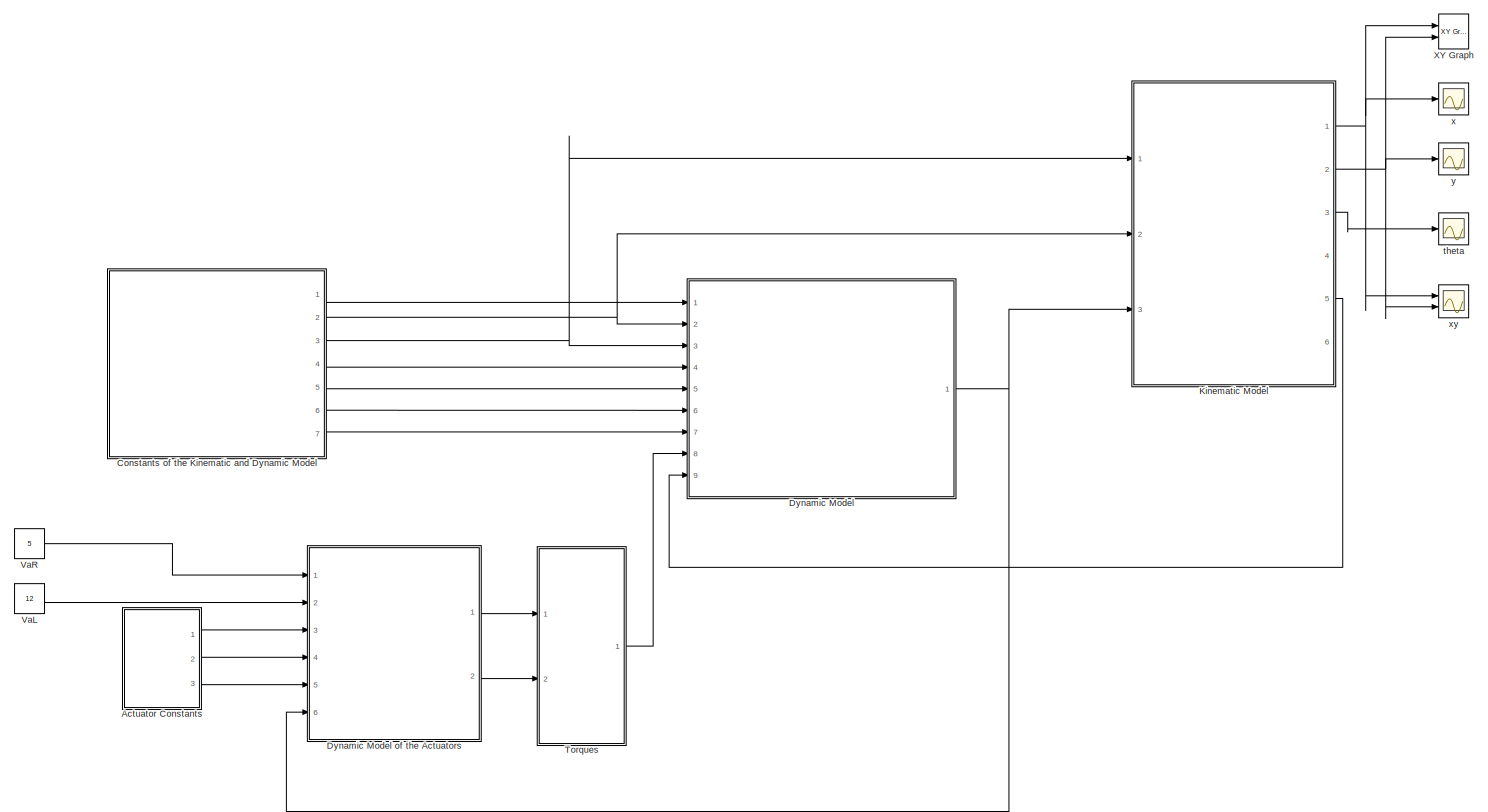
[diagram: root canvas - part 1/2, full width, middle band]
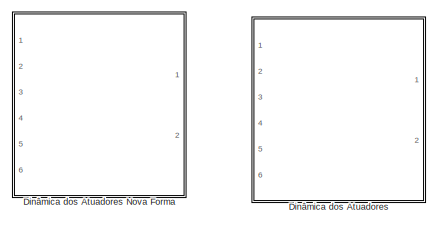
[diagram: root canvas - part 2/2, bottom left region]
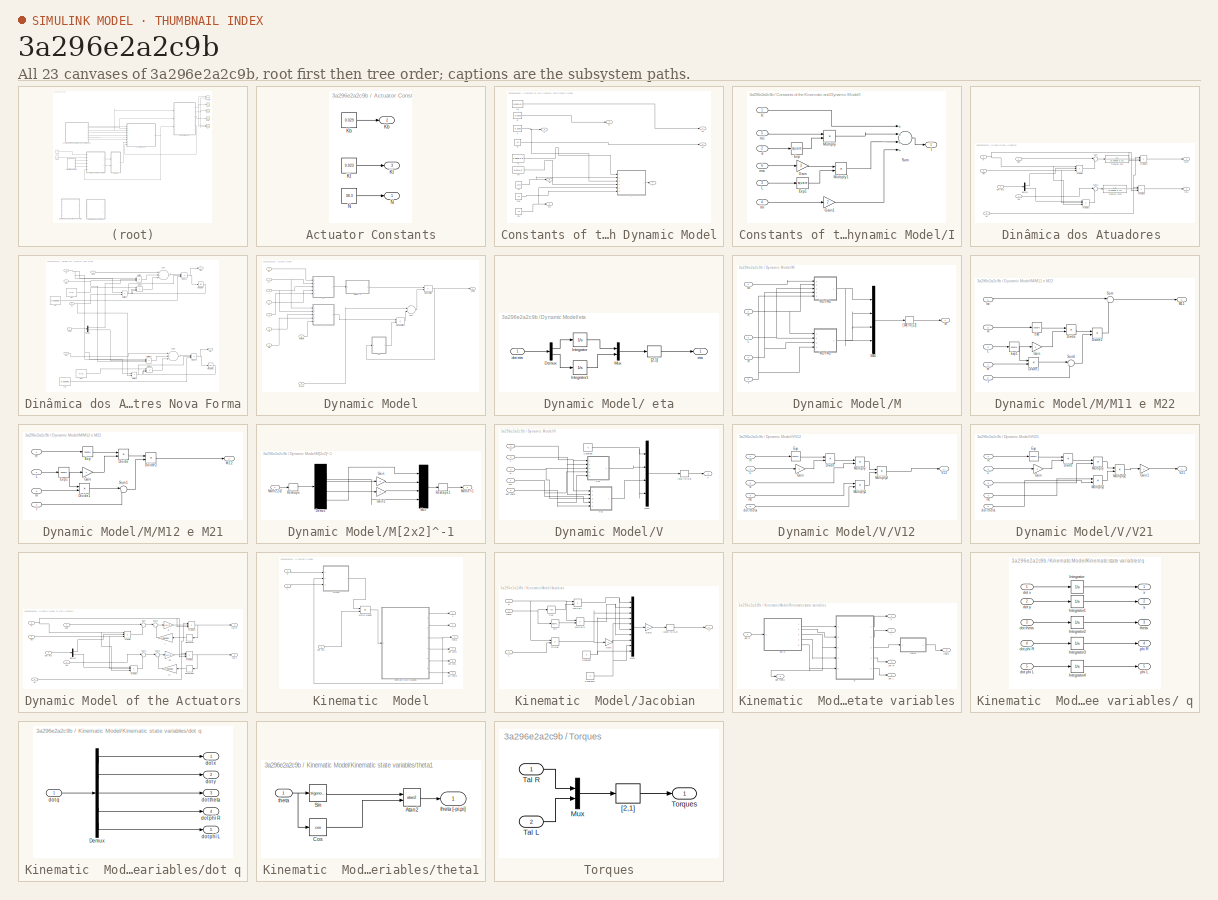
[diagram: thumbnail index - all 23 canvases of the model, root first then tree order]
MODEL slx_3a296e2a2c9b
KIND model
CONFIG AbsTol = auto
CONFIG EnableMultiTasking = off
CONFIG FixedStep = 0.01
CONFIG MaxStep = auto
CONFIG MinStep = auto
CONFIG RelTol = 1e-3
CONFIG SampleTimeConstraint = Unconstrained
CONFIG Solver = ode4
CONFIG SolverName = ode4
CONFIG StartTime = 0.0
CONFIG StopTime = 100
BLOCK [SubSystem] Actuator Constants
  Ports = [0, 3]
  RequestExecContextInheritance = off
BLOCK [Constant] Actuator Constants/Kb
  Value = 0.029
BLOCK [Outport] Actuator Constants/Kb 
  IconDisplay = Port number
  Port = 2
BLOCK [Constant] Actuator Constants/Kt
  Value = 0.023
BLOCK [Outport] Actuator Constants/Kt 
  IconDisplay = Port number
  Port = 3
BLOCK [Outport] Actuator Constants/N
  IconDisplay = Port number
BLOCK [Constant] Actuator Constants/N  
  Value = 38.3
BLOCK [SubSystem] Constants of the Kinematic and Dynamic Model
  Ports = [0, 7]
  RequestExecContextInheritance = off
BLOCK [SubSystem] Constants of the Kinematic and Dynamic Model/I
  Ports = [6, 1]
  RequestExecContextInheritance = off
BLOCK [Outport] Constants of the Kinematic and Dynamic Model/I 
  IconDisplay = Port number
  Port = 7
BLOCK [Math] Constants of the Kinematic and Dynamic Model/I/Exp
  Operator = square
  Ports = [1, 1]
BLOCK [Math] Constants of the Kinematic and Dynamic Model/I/Exp1
  Operator = square
  Ports = [1, 1]
BLOCK [Gain] Constants of the Kinematic and Dynamic Model/I/Gain
  Gain = 2
  OutDataTypeStr = Inherit: Inherit via internal rule
  ParamDataTypeStr = Inherit: Inherit via internal rule
  SaturateOnIntegerOverflow = off
BLOCK [Gain] Constants of the Kinematic and Dynamic Model/I/Gain1
  Gain = 2
  OutDataTypeStr = Inherit: Inherit via internal rule
  ParamDataTypeStr = Inherit: Inherit via internal rule
  SaturateOnIntegerOverflow = off
BLOCK [Outport] Constants of the Kinematic and Dynamic Model/I/I
  IconDisplay = Port number
BLOCK [Inport] Constants of the Kinematic and Dynamic Model/I/Ic
  IconDisplay = Port number
BLOCK [Inport] Constants of the Kinematic and Dynamic Model/I/Im
  IconDisplay = Port number
  Port = 4
BLOCK [Inport] Constants of the Kinematic and Dynamic Model/I/L
  IconDisplay = Port number
  Port = 3
BLOCK [Product] Constants of the Kinematic and Dynamic Model/I/Multiply
  InputSameDT = off
  OutDataTypeStr = Inherit: Inherit via internal rule
  Ports = [2, 1]
  RndMeth = Floor
  SaturateOnIntegerOverflow = off
BLOCK [Product] Constants of the Kinematic and Dynamic Model/I/Multiply1
  InputSameDT = off
  OutDataTypeStr = Inherit: Inherit via internal rule
  Ports = [2, 1]
  RndMeth = Floor
  SaturateOnIntegerOverflow = off
BLOCK [Sum] Constants of the Kinematic and Dynamic Model/I/Sum
  InputSameDT = off
  Inputs = ++++
  OutDataTypeStr = Inherit: Inherit via internal rule
  Ports = [4, 1]
  SaturateOnIntegerOverflow = off
BLOCK [Inport] Constants of the Kinematic and Dynamic Model/I/d
  IconDisplay = Port number
  Port = 2
BLOCK [Inport] Constants of the Kinematic and Dynamic Model/I/mc
  IconDisplay = Port number
  Port = 5
BLOCK [Inport] Constants of the Kinematic and Dynamic Model/I/mw
  IconDisplay = Port number
  Port = 6
BLOCK [Constant] Constants of the Kinematic and Dynamic Model/Ic
  Value = 0.1307*1.6
BLOCK [Constant] Constants of the Kinematic and Dynamic Model/Im
  Value = 0.04*1.5
BLOCK [Constant] Constants of the Kinematic and Dynamic Model/Iw
  Value = 0.02*1.5
BLOCK [Outport] Constants of the Kinematic and Dynamic Model/Iw 
  IconDisplay = Port number
BLOCK [Constant] Constants of the Kinematic and Dynamic Model/L
  Value = 0.1655
  VectorParams1D = off
BLOCK [Outport] Constants of the Kinematic and Dynamic Model/L 
  IconDisplay = Port number
  Port = 3
BLOCK [Constant] Constants of the Kinematic and Dynamic Model/R
  Value = 0.0975
BLOCK [Outport] Constants of the Kinematic and Dynamic Model/R 
  IconDisplay = Port number
  Port = 2
BLOCK [Constant] Constants of the Kinematic and Dynamic Model/d
  Value = 0.445
BLOCK [Outport] Constants of the Kinematic and Dynamic Model/d 
  IconDisplay = Port number
  Port = 5
BLOCK [Constant] Constants of the Kinematic and Dynamic Model/m
  Value = 4.6
BLOCK [Outport] Constants of the Kinematic and Dynamic Model/m 
  IconDisplay = Port number
  Port = 4
BLOCK [Constant] Constants of the Kinematic and Dynamic Model/mc
  Value = 1.6
BLOCK [Outport] Constants of the Kinematic and Dynamic Model/mc 
  IconDisplay = Port number
  Port = 6
BLOCK [Constant] Constants of the Kinematic and Dynamic Model/mw
  Value = 1.5
BLOCK [SubSystem] Dinâmica dos Atuadores 
  Commented = on
  Ports = [6, 2]
  RequestExecContextInheritance = off
BLOCK [Demux] Dinâmica dos Atuadores /Demux
  DisplayOption = bar
  Outputs = 2
  Ports = [1, 2]
BLOCK [Inport] Dinâmica dos Atuadores /Kb 
  IconDisplay = Port number
  Port = 5
BLOCK [Inport] Dinâmica dos Atuadores /Kt 
  IconDisplay = Port number
  Port = 6
BLOCK [Product] Dinâmica dos Atuadores /Multiply
  InputSameDT = off
  Inputs = 3
  OutDataTypeStr = Inherit: Inherit via internal rule
  Ports = [3, 1]
  RndMeth = Floor
  SaturateOnIntegerOverflow = off
BLOCK [Product] Dinâmica dos Atuadores /Multiply1
  InputSameDT = off
  Inputs = 3
  OutDataTypeStr = Inherit: Inherit via internal rule
  Ports = [3, 1]
  RndMeth = Floor
  SaturateOnIntegerOverflow = off
BLOCK [Product] Dinâmica dos Atuadores /Multiply2
  InputSameDT = off
  Inputs = 3
  OutDataTypeStr = Inherit: Inherit via internal rule
  Ports = [3, 1]
  RndMeth = Floor
  SaturateOnIntegerOverflow = off
BLOCK [Product] Dinâmica dos Atuadores /Multiply3
  InputSameDT = off
  Inputs = 3
  OutDataTypeStr = Inherit: Inherit via internal rule
  Ports = [3, 1]
  RndMeth = Floor
  SaturateOnIntegerOverflow = off
BLOCK [Inport] Dinâmica dos Atuadores /N 
  IconDisplay = Port number
  Port = 4
BLOCK [Sum] Dinâmica dos Atuadores /Sum
  IconShape = round
  InputSameDT = off
  Inputs = |+-
  OutDataTypeStr = Inherit: Inherit via internal rule
  Ports = [2, 1]
  SaturateOnIntegerOverflow = off
BLOCK [Sum] Dinâmica dos Atuadores /Sum1
  IconShape = round
  InputSameDT = off
  Inputs = |+-
  OutDataTypeStr = Inherit: Inherit via internal rule
  Ports = [2, 1]
  SaturateOnIntegerOverflow = off
BLOCK [TransferFcn] Dinâmica dos Atuadores /Transfer Fcn
  Denominator = [0.00066 0.71]
BLOCK [TransferFcn] Dinâmica dos Atuadores /Transfer Fcn2
  Denominator = [0.00066 0.71]
BLOCK [Inport] Dinâmica dos Atuadores /VaL
  IconDisplay = Port number
  Port = 2
BLOCK [Inport] Dinâmica dos Atuadores /VaR
  IconDisplay = Port number
BLOCK [Inport] Dinâmica dos Atuadores /dot eta
  IconDisplay = Port number
  Port = 3
BLOCK [Outport] Dinâmica dos Atuadores /tal L
  IconDisplay = Port number
  Port = 2
BLOCK [Outport] Dinâmica dos Atuadores /tal R
  IconDisplay = Port number
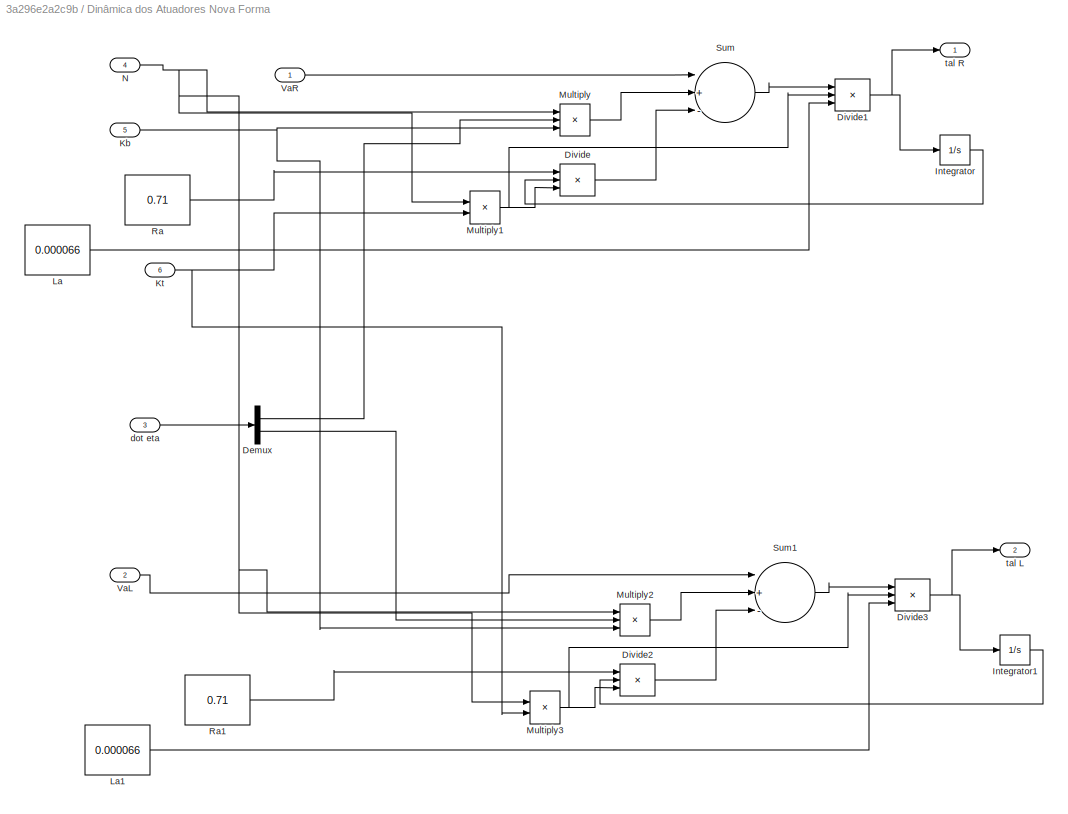
BLOCK [SubSystem] Dinâmica dos Atuadores Nova Forma
  Commented = on
  Ports = [6, 2]
  RequestExecContextInheritance = off
BLOCK [Demux] Dinâmica dos Atuadores Nova Forma/Demux
  DisplayOption = bar
  Outputs = 2
  Ports = [1, 2]
BLOCK [Product] Dinâmica dos Atuadores Nova Forma/Divide
  InputSameDT = off
  Inputs = **/
  OutDataTypeStr = Inherit: Inherit via internal rule
  Ports = [3, 1]
  RndMeth = Floor
  SaturateOnIntegerOverflow = off
BLOCK [Product] Dinâmica dos Atuadores Nova Forma/Divide1
  InputSameDT = off
  Inputs = **/
  OutDataTypeStr = Inherit: Inherit via internal rule
  Ports = [3, 1]
  RndMeth = Floor
  SaturateOnIntegerOverflow = off
BLOCK [Product] Dinâmica dos Atuadores Nova Forma/Divide2
  InputSameDT = off
  Inputs = **/
  OutDataTypeStr = Inherit: Inherit via internal rule
  Ports = [3, 1]
  RndMeth = Floor
  SaturateOnIntegerOverflow = off
BLOCK [Product] Dinâmica dos Atuadores Nova Forma/Divide3
  InputSameDT = off
  Inputs = **/
  OutDataTypeStr = Inherit: Inherit via internal rule
  Ports = [3, 1]
  RndMeth = Floor
  SaturateOnIntegerOverflow = off
BLOCK [Integrator] Dinâmica dos Atuadores Nova Forma/Integrator
  Ports = [1, 1]
BLOCK [Integrator] Dinâmica dos Atuadores Nova Forma/Integrator1
  Ports = [1, 1]
BLOCK [Inport] Dinâmica dos Atuadores Nova Forma/Kb 
  IconDisplay = Port number
  Port = 5
BLOCK [Inport] Dinâmica dos Atuadores Nova Forma/Kt 
  IconDisplay = Port number
  Port = 6
BLOCK [Constant] Dinâmica dos Atuadores Nova Forma/La
  Value = 0.000066
BLOCK [Constant] Dinâmica dos Atuadores Nova Forma/La1
  Value = 0.000066
BLOCK [Product] Dinâmica dos Atuadores Nova Forma/Multiply
  InputSameDT = off
  Inputs = 3
  OutDataTypeStr = Inherit: Inherit via internal rule
  Ports = [3, 1]
  RndMeth = Floor
  SaturateOnIntegerOverflow = off
BLOCK [Product] Dinâmica dos Atuadores Nova Forma/Multiply1
  InputSameDT = off
  OutDataTypeStr = Inherit: Inherit via internal rule
  Ports = [2, 1]
  RndMeth = Floor
  SaturateOnIntegerOverflow = off
BLOCK [Product] Dinâmica dos Atuadores Nova Forma/Multiply2
  InputSameDT = off
  Inputs = 3
  OutDataTypeStr = Inherit: Inherit via internal rule
  Ports = [3, 1]
  RndMeth = Floor
  SaturateOnIntegerOverflow = off
BLOCK [Product] Dinâmica dos Atuadores Nova Forma/Multiply3
  InputSameDT = off
  OutDataTypeStr = Inherit: Inherit via internal rule
  Ports = [2, 1]
  RndMeth = Floor
  SaturateOnIntegerOverflow = off
BLOCK [Inport] Dinâmica dos Atuadores Nova Forma/N 
  IconDisplay = Port number
  Port = 4
BLOCK [Constant] Dinâmica dos Atuadores Nova Forma/Ra
  Value = 0.71
BLOCK [Constant] Dinâmica dos Atuadores Nova Forma/Ra1
  Value = 0.71
BLOCK [Sum] Dinâmica dos Atuadores Nova Forma/Sum
  InputSameDT = off
  Inputs = |+--
  OutDataTypeStr = Inherit: Inherit via internal rule
  Ports = [3, 1]
  SaturateOnIntegerOverflow = off
BLOCK [Sum] Dinâmica dos Atuadores Nova Forma/Sum1
  InputSameDT = off
  Inputs = |+--
  OutDataTypeStr = Inherit: Inherit via internal rule
  Ports = [3, 1]
  SaturateOnIntegerOverflow = off
BLOCK [Inport] Dinâmica dos Atuadores Nova Forma/VaL
  IconDisplay = Port number
  Port = 2
BLOCK [Inport] Dinâmica dos Atuadores Nova Forma/VaR
  IconDisplay = Port number
BLOCK [Inport] Dinâmica dos Atuadores Nova Forma/dot eta
  IconDisplay = Port number
  Port = 3
BLOCK [Outport] Dinâmica dos Atuadores Nova Forma/tal L
  IconDisplay = Port number
  Port = 2
BLOCK [Outport] Dinâmica dos Atuadores Nova Forma/tal R
  IconDisplay = Port number
BLOCK [SubSystem] Dynamic Model
  Ports = [9, 1]
  RequestExecContextInheritance = off
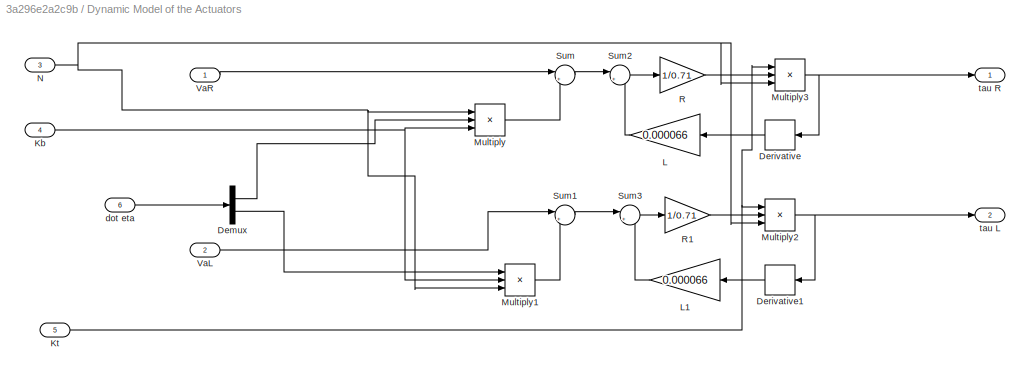
BLOCK [SubSystem] Dynamic Model of the Actuators
  Ports = [6, 2]
  RequestExecContextInheritance = off
BLOCK [Demux] Dynamic Model of the Actuators/Demux
  DisplayOption = bar
  Outputs = 2
  Ports = [1, 2]
BLOCK [Derivative] Dynamic Model of the Actuators/Derivative
BLOCK [Derivative] Dynamic Model of the Actuators/Derivative1
BLOCK [Inport] Dynamic Model of the Actuators/Kb 
  IconDisplay = Port number
  Port = 4
BLOCK [Inport] Dynamic Model of the Actuators/Kt 
  IconDisplay = Port number
  Port = 5
BLOCK [Gain] Dynamic Model of the Actuators/L
  Gain = 0.000066
  OutDataTypeStr = Inherit: Inherit via internal rule
  ParamDataTypeStr = Inherit: Inherit via internal rule
  SaturateOnIntegerOverflow = off
BLOCK [Gain] Dynamic Model of the Actuators/L1
  Gain = 0.000066
  OutDataTypeStr = Inherit: Inherit via internal rule
  ParamDataTypeStr = Inherit: Inherit via internal rule
  SaturateOnIntegerOverflow = off
BLOCK [Product] Dynamic Model of the Actuators/Multiply
  InputSameDT = off
  Inputs = 3
  OutDataTypeStr = Inherit: Inherit via internal rule
  Ports = [3, 1]
  RndMeth = Floor
  SaturateOnIntegerOverflow = off
BLOCK [Product] Dynamic Model of the Actuators/Multiply1
  InputSameDT = off
  Inputs = 3
  OutDataTypeStr = Inherit: Inherit via internal rule
  Ports = [3, 1]
  RndMeth = Floor
  SaturateOnIntegerOverflow = off
BLOCK [Product] Dynamic Model of the Actuators/Multiply2
  InputSameDT = off
  Inputs = 3
  OutDataTypeStr = Inherit: Inherit via internal rule
  Ports = [3, 1]
  RndMeth = Floor
  SaturateOnIntegerOverflow = off
BLOCK [Product] Dynamic Model of the Actuators/Multiply3
  InputSameDT = off
  Inputs = 3
  OutDataTypeStr = Inherit: Inherit via internal rule
  Ports = [3, 1]
  RndMeth = Floor
  SaturateOnIntegerOverflow = off
BLOCK [Inport] Dynamic Model of the Actuators/N 
  IconDisplay = Port number
  Port = 3
BLOCK [Gain] Dynamic Model of the Actuators/R
  Gain = 1/0.71
  OutDataTypeStr = Inherit: Inherit via internal rule
  ParamDataTypeStr = Inherit: Inherit via internal rule
  SaturateOnIntegerOverflow = off
BLOCK [Gain] Dynamic Model of the Actuators/R1
  Gain = 1/0.71
  OutDataTypeStr = Inherit: Inherit via internal rule
  ParamDataTypeStr = Inherit: Inherit via internal rule
  SaturateOnIntegerOverflow = off
BLOCK [Sum] Dynamic Model of the Actuators/Sum
  IconShape = round
  InputSameDT = off
  Inputs = |+-
  OutDataTypeStr = Inherit: Inherit via internal rule
  Ports = [2, 1]
  SaturateOnIntegerOverflow = off
BLOCK [Sum] Dynamic Model of the Actuators/Sum1
  IconShape = round
  InputSameDT = off
  Inputs = |+-
  OutDataTypeStr = Inherit: Inherit via internal rule
  Ports = [2, 1]
  SaturateOnIntegerOverflow = off
BLOCK [Sum] Dynamic Model of the Actuators/Sum2
  IconShape = round
  InputSameDT = off
  Inputs = |+-
  OutDataTypeStr = Inherit: Inherit via internal rule
  Ports = [2, 1]
  SaturateOnIntegerOverflow = off
BLOCK [Sum] Dynamic Model of the Actuators/Sum3
  IconShape = round
  InputSameDT = off
  Inputs = |+-
  OutDataTypeStr = Inherit: Inherit via internal rule
  Ports = [2, 1]
  SaturateOnIntegerOverflow = off
BLOCK [Inport] Dynamic Model of the Actuators/VaL
  IconDisplay = Port number
  Port = 2
BLOCK [Inport] Dynamic Model of the Actuators/VaR
  IconDisplay = Port number
BLOCK [Inport] Dynamic Model of the Actuators/dot eta
  IconDisplay = Port number
  Port = 6
BLOCK [Outport] Dynamic Model of the Actuators/tau L
  IconDisplay = Port number
  Port = 2
BLOCK [Outport] Dynamic Model of the Actuators/tau R
  IconDisplay = Port number
BLOCK [SubSystem] Dynamic Model/ eta
  Ports = [1, 1]
  RequestExecContextInheritance = off
BLOCK [Demux] Dynamic Model/ eta/Demux
  DisplayOption = bar
  Outputs = 2
  Ports = [1, 2]
BLOCK [Integrator] Dynamic Model/ eta/Integrator
  Ports = [1, 1]
BLOCK [Integrator] Dynamic Model/ eta/Integrator1
  Ports = [1, 1]
BLOCK [Mux] Dynamic Model/ eta/Mux
  DisplayOption = bar
  Inputs = 2
  Ports = [2, 1]
BLOCK [Reshape] Dynamic Model/ eta/[2,1]
  OutputDimensionality = Customize
  OutputDimensions = [2,1]
  Ports = [1, 1]
BLOCK [Inport] Dynamic Model/ eta/dot eta
  IconDisplay = Port number
BLOCK [Outport] Dynamic Model/ eta/eta 
  IconDisplay = Port number
BLOCK [Inport] Dynamic Model/I
  IconDisplay = Port number
  Port = 7
BLOCK [Inport] Dynamic Model/Iw
  IconDisplay = Port number
BLOCK [Inport] Dynamic Model/L
  IconDisplay = Port number
  Port = 3
BLOCK [SubSystem] Dynamic Model/M
  Ports = [5, 1]
  RequestExecContextInheritance = off
BLOCK [Inport] Dynamic Model/M/I
  IconDisplay = Port number
  Port = 5
BLOCK [Inport] Dynamic Model/M/Iw
  IconDisplay = Port number
BLOCK [Inport] Dynamic Model/M/L
  IconDisplay = Port number
  Port = 3
BLOCK [Outport] Dynamic Model/M/M
  IconDisplay = Port number
BLOCK [SubSystem] Dynamic Model/M/M11 e M22
  Ports = [5, 1]
  RequestExecContextInheritance = off
BLOCK [Product] Dynamic Model/M/M11 e M22/Divide
  InputSameDT = off
  Inputs = */
  OutDataTypeStr = Inherit: Inherit via internal rule
  Ports = [2, 1]
  RndMeth = Floor
  SaturateOnIntegerOverflow = off
BLOCK [Product] Dynamic Model/M/M11 e M22/Divide1
  InputSameDT = off
  Inputs = **
  OutDataTypeStr = Inherit: Inherit via internal rule
  Ports = [2, 1]
  RndMeth = Floor
  SaturateOnIntegerOverflow = off
BLOCK [Product] Dynamic Model/M/M11 e M22/Divide2
  InputSameDT = off
  Inputs = **
  OutDataTypeStr = Inherit: Inherit via internal rule
  Ports = [2, 1]
  RndMeth = Floor
  SaturateOnIntegerOverflow = off
BLOCK [Math] Dynamic Model/M/M11 e M22/Exp
  Operator = square
  Ports = [1, 1]
BLOCK [Math] Dynamic Model/M/M11 e M22/Exp1
  Operator = square
  Ports = [1, 1]
BLOCK [Gain] Dynamic Model/M/M11 e M22/Gain
  Gain = 4
  OutDataTypeStr = Inherit: Inherit via internal rule
  ParamDataTypeStr = Inherit: Inherit via internal rule
  SaturateOnIntegerOverflow = off
BLOCK [Inport] Dynamic Model/M/M11 e M22/I
  IconDisplay = Port number
  Port = 5
BLOCK [Inport] Dynamic Model/M/M11 e M22/Iw
  IconDisplay = Port number
BLOCK [Inport] Dynamic Model/M/M11 e M22/L
  IconDisplay = Port number
  Port = 3
BLOCK [Outport] Dynamic Model/M/M11 e M22/M11
  IconDisplay = Port number
BLOCK [Inport] Dynamic Model/M/M11 e M22/R
  IconDisplay = Port number
  Port = 2
BLOCK [Sum] Dynamic Model/M/M11 e M22/Sum
  IconShape = round
  InputSameDT = off
  Inputs = |++
  OutDataTypeStr = Inherit: Inherit via internal rule
  Ports = [2, 1]
  SaturateOnIntegerOverflow = off
BLOCK [Sum] Dynamic Model/M/M11 e M22/Sum1
  IconShape = round
  InputSameDT = off
  Inputs = |++
  OutDataTypeStr = Inherit: Inherit via internal rule
  Ports = [2, 1]
  SaturateOnIntegerOverflow = off
BLOCK [Inport] Dynamic Model/M/M11 e M22/m 
  IconDisplay = Port number
  Port = 4
BLOCK [SubSystem] Dynamic Model/M/M12 e M21
  Ports = [4, 1]
  RequestExecContextInheritance = off
BLOCK [Product] Dynamic Model/M/M12 e M21/Divide
  InputSameDT = off
  Inputs = */
  OutDataTypeStr = Inherit: Inherit via internal rule
  Ports = [2, 1]
  RndMeth = Floor
  SaturateOnIntegerOverflow = off
BLOCK [Product] Dynamic Model/M/M12 e M21/Divide1
  InputSameDT = off
  Inputs = **
  OutDataTypeStr = Inherit: Inherit via internal rule
  Ports = [2, 1]
  RndMeth = Floor
  SaturateOnIntegerOverflow = off
BLOCK [Product] Dynamic Model/M/M12 e M21/Divide2
  InputSameDT = off
  Inputs = **
  OutDataTypeStr = Inherit: Inherit via internal rule
  Ports = [2, 1]
  RndMeth = Floor
  SaturateOnIntegerOverflow = off
BLOCK [Math] Dynamic Model/M/M12 e M21/Exp
  Operator = square
  Ports = [1, 1]
BLOCK [Math] Dynamic Model/M/M12 e M21/Exp1
  Operator = square
  Ports = [1, 1]
BLOCK [Gain] Dynamic Model/M/M12 e M21/Gain
  Gain = 4
  OutDataTypeStr = Inherit: Inherit via internal rule
  ParamDataTypeStr = Inherit: Inherit via internal rule
  SaturateOnIntegerOverflow = off
BLOCK [Inport] Dynamic Model/M/M12 e M21/I
  IconDisplay = Port number
  Port = 4
BLOCK [Inport] Dynamic Model/M/M12 e M21/L
  IconDisplay = Port number
  Port = 2
BLOCK [Outport] Dynamic Model/M/M12 e M21/M12
  IconDisplay = Port number
BLOCK [Inport] Dynamic Model/M/M12 e M21/R
  IconDisplay = Port number
BLOCK [Sum] Dynamic Model/M/M12 e M21/Sum1
  IconShape = round
  InputSameDT = off
  Inputs = |+-
  OutDataTypeStr = Inherit: Inherit via internal rule
  Ports = [2, 1]
  SaturateOnIntegerOverflow = off
BLOCK [Inport] Dynamic Model/M/M12 e M21/m 
  IconDisplay = Port number
  Port = 3
BLOCK [Mux] Dynamic Model/M/Mux1
  DisplayOption = bar
  Ports = [4, 1]
BLOCK [Inport] Dynamic Model/M/R
  IconDisplay = Port number
  Port = 2
BLOCK [Reshape] Dynamic Model/M/[1x4] to [2,2]
  OutputDimensionality = Customize
  OutputDimensions = [2,2]
  Ports = [1, 1]
BLOCK [Inport] Dynamic Model/M/m
  IconDisplay = Port number
  Port = 4
BLOCK [SubSystem] Dynamic Model/M[2x2]^-1
  Ports = [1, 1]
  RequestExecContextInheritance = off
BLOCK [Demux] Dynamic Model/M[2x2]^-1/Demux
  DisplayOption = bar
  Ports = [1, 4]
BLOCK [Gain] Dynamic Model/M[2x2]^-1/Gain
  Gain = -1
  OutDataTypeStr = Inherit: Inherit via internal rule
  ParamDataTypeStr = Inherit: Inherit via internal rule
  SaturateOnIntegerOverflow = off
BLOCK [Gain] Dynamic Model/M[2x2]^-1/Gain1
  Gain = -1
  OutDataTypeStr = Inherit: Inherit via internal rule
  ParamDataTypeStr = Inherit: Inherit via internal rule
  SaturateOnIntegerOverflow = off
BLOCK [Outport] Dynamic Model/M[2x2]^-1/Matrix ^-1
  IconDisplay = Port number
BLOCK [Inport] Dynamic Model/M[2x2]^-1/Matriz 2x2 
  IconDisplay = Port number
BLOCK [Mux] Dynamic Model/M[2x2]^-1/Mux
  DisplayOption = bar
  Ports = [4, 1]
BLOCK [Reshape] Dynamic Model/M[2x2]^-1/Reshape
  OutputDimensionality = Customize
  OutputDimensions = [4,1]
  Ports = [1, 1]
BLOCK [Reshape] Dynamic Model/M[2x2]^-1/Reshape1
  OutputDimensionality = Customize
  OutputDimensions = [2,2]
  Ports = [1, 1]
BLOCK [Product] Dynamic Model/Matrix Multiply
  InputSameDT = off
  Multiplication = Matrix(*)
  OutDataTypeStr = Inherit: Inherit via internal rule
  Ports = [2, 1]
  RndMeth = Floor
  SaturateOnIntegerOverflow = off
BLOCK [Product] Dynamic Model/Matrix Multiply1
  InputSameDT = off
  Multiplication = Matrix(*)
  OutDataTypeStr = Inherit: Inherit via internal rule
  Ports = [2, 1]
  RndMeth = Floor
  SaturateOnIntegerOverflow = off
BLOCK [Inport] Dynamic Model/R
  IconDisplay = Port number
  Port = 2
BLOCK [Sum] Dynamic Model/Sum
  InputSameDT = off
  Inputs = +-
  OutDataTypeStr = Inherit: Inherit via internal rule
  Ports = [2, 1]
  SaturateOnIntegerOverflow = off
BLOCK [SubSystem] Dynamic Model/V
  Ports = [5, 1]
  RequestExecContextInheritance = off
BLOCK [Constant] Dynamic Model/V/Constant
  Value = 0
BLOCK [Inport] Dynamic Model/V/L
  IconDisplay = Port number
  Port = 2
BLOCK [Mux] Dynamic Model/V/Mux1
  DisplayOption = bar
  Ports = [4, 1]
BLOCK [Inport] Dynamic Model/V/R
  IconDisplay = Port number
BLOCK [Outport] Dynamic Model/V/V
  IconDisplay = Port number
BLOCK [SubSystem] Dynamic Model/V/V12
  Ports = [5, 1]
  RequestExecContextInheritance = off
BLOCK [Product] Dynamic Model/V/V12/Divide
  InputSameDT = off
  Inputs = */
  OutDataTypeStr = Inherit: Inherit via internal rule
  Ports = [2, 1]
  RndMeth = Floor
  SaturateOnIntegerOverflow = off
BLOCK [Math] Dynamic Model/V/V12/Exp
  Operator = square
  Ports = [1, 1]
BLOCK [Gain] Dynamic Model/V/V12/Gain
  Gain = 2
  OutDataTypeStr = Inherit: Inherit via internal rule
  ParamDataTypeStr = Inherit: Inherit via internal rule
  SaturateOnIntegerOverflow = off
BLOCK [Inport] Dynamic Model/V/V12/L
  IconDisplay = Port number
  Port = 2
BLOCK [Product] Dynamic Model/V/V12/Multiply
  InputSameDT = off
  OutDataTypeStr = Inherit: Inherit via internal rule
  Ports = [2, 1]
  RndMeth = Floor
  SaturateOnIntegerOverflow = off
BLOCK [Product] Dynamic Model/V/V12/Multiply1
  InputSameDT = off
  OutDataTypeStr = Inherit: Inherit via internal rule
  Ports = [2, 1]
  RndMeth = Floor
  SaturateOnIntegerOverflow = off
BLOCK [Product] Dynamic Model/V/V12/Multiply2
  InputSameDT = off
  OutDataTypeStr = Inherit: Inherit via internal rule
  Ports = [2, 1]
  RndMeth = Floor
  SaturateOnIntegerOverflow = off
BLOCK [Inport] Dynamic Model/V/V12/R
  IconDisplay = Port number
BLOCK [Outport] Dynamic Model/V/V12/V12 
  IconDisplay = Port number
BLOCK [Inport] Dynamic Model/V/V12/d
  IconDisplay = Port number
  Port = 3
BLOCK [Inport] Dynamic Model/V/V12/dot theta
  IconDisplay = Port number
  Port = 5
BLOCK [Inport] Dynamic Model/V/V12/mc
  IconDisplay = Port number
  Port = 4
BLOCK [SubSystem] Dynamic Model/V/V21
  Ports = [5, 1]
  RequestExecContextInheritance = off
BLOCK [Product] Dynamic Model/V/V21/Divide
  InputSameDT = off
  Inputs = */
  OutDataTypeStr = Inherit: Inherit via internal rule
  Ports = [2, 1]
  RndMeth = Floor
  SaturateOnIntegerOverflow = off
BLOCK [Math] Dynamic Model/V/V21/Exp
  Operator = square
  Ports = [1, 1]
BLOCK [Gain] Dynamic Model/V/V21/Gain
  Gain = 2
  OutDataTypeStr = Inherit: Inherit via internal rule
  ParamDataTypeStr = Inherit: Inherit via internal rule
  SaturateOnIntegerOverflow = off
BLOCK [Gain] Dynamic Model/V/V21/Gain1
  Gain = -1
  OutDataTypeStr = Inherit: Inherit via internal rule
  ParamDataTypeStr = Inherit: Inherit via internal rule
  SaturateOnIntegerOverflow = off
BLOCK [Inport] Dynamic Model/V/V21/L
  IconDisplay = Port number
  Port = 2
BLOCK [Product] Dynamic Model/V/V21/Multiply
  InputSameDT = off
  OutDataTypeStr = Inherit: Inherit via internal rule
  Ports = [2, 1]
  RndMeth = Floor
  SaturateOnIntegerOverflow = off
BLOCK [Product] Dynamic Model/V/V21/Multiply1
  InputSameDT = off
  OutDataTypeStr = Inherit: Inherit via internal rule
  Ports = [2, 1]
  RndMeth = Floor
  SaturateOnIntegerOverflow = off
BLOCK [Product] Dynamic Model/V/V21/Multiply2
  InputSameDT = off
  OutDataTypeStr = Inherit: Inherit via internal rule
  Ports = [2, 1]
  RndMeth = Floor
  SaturateOnIntegerOverflow = off
BLOCK [Inport] Dynamic Model/V/V21/R
  IconDisplay = Port number
BLOCK [Outport] Dynamic Model/V/V21/V21 
  IconDisplay = Port number
BLOCK [Inport] Dynamic Model/V/V21/d
  IconDisplay = Port number
  Port = 3
BLOCK [Inport] Dynamic Model/V/V21/dot theta
  IconDisplay = Port number
  Port = 5
BLOCK [Inport] Dynamic Model/V/V21/mc
  IconDisplay = Port number
  Port = 4
BLOCK [Reshape] Dynamic Model/V/[4x1] to [2,2]
  OutputDimensionality = Customize
  OutputDimensions = [2,2]
  Ports = [1, 1]
BLOCK [Inport] Dynamic Model/V/d
  IconDisplay = Port number
  Port = 3
BLOCK [Inport] Dynamic Model/V/dot theta
  IconDisplay = Port number
  Port = 5
BLOCK [Inport] Dynamic Model/V/mc
  IconDisplay = Port number
  Port = 4
BLOCK [Inport] Dynamic Model/d
  IconDisplay = Port number
  Port = 5
BLOCK [Outport] Dynamic Model/dot eta
  IconDisplay = Port number
BLOCK [Inport] Dynamic Model/dot theta
  IconDisplay = Port number
  Port = 9
BLOCK [Inport] Dynamic Model/m
  IconDisplay = Port number
  Port = 4
BLOCK [Inport] Dynamic Model/mc
  IconDisplay = Port number
  Port = 6
BLOCK [Inport] Dynamic Model/torque
  IconDisplay = Port number
  Port = 8
BLOCK [SubSystem] Kinematic  Model
  Ports = [3, 6]
  RequestExecContextInheritance = off
BLOCK [SubSystem] Kinematic  Model/Jacobian 
  Ports = [3, 1]
  RequestExecContextInheritance = off
BLOCK [Constant] Kinematic  Model/Jacobian /Constant
  Value = 2
BLOCK [Constant] Kinematic  Model/Jacobian /Constant1
  Value = 0
BLOCK [Trigonometry] Kinematic  Model/Jacobian /Cos
  Operator = cos
  Ports = [1, 1]
BLOCK [Product] Kinematic  Model/Jacobian /Divide
  InputSameDT = off
  Inputs = */
  OutDataTypeStr = Inherit: Inherit via internal rule
  Ports = [2, 1]
  RndMeth = Floor
  SaturateOnIntegerOverflow = off
BLOCK [Gain] Kinematic  Model/Jacobian /Gain
  Gain = -1
  OutDataTypeStr = Inherit: Inherit via internal rule
  ParamDataTypeStr = Inherit: Inherit via internal rule
  SaturateOnIntegerOverflow = off
BLOCK [Gain] Kinematic  Model/Jacobian /Gain1
  Gain = .5
  OutDataTypeStr = Inherit: Inherit via internal rule
  ParamDataTypeStr = Inherit: Inherit via internal rule
  SaturateOnIntegerOverflow = off
BLOCK [Outport] Kinematic  Model/Jacobian /J
  IconDisplay = Port number
BLOCK [Inport] Kinematic  Model/Jacobian /L
  IconDisplay = Port number
  Port = 3
BLOCK [Product] Kinematic  Model/Jacobian /Multiply
  InputSameDT = off
  OutDataTypeStr = Inherit: Inherit via internal rule
  Ports = [2, 1]
  RndMeth = Floor
  SaturateOnIntegerOverflow = off
BLOCK [Product] Kinematic  Model/Jacobian /Multiply1
  InputSameDT = off
  OutDataTypeStr = Inherit: Inherit via internal rule
  Ports = [2, 1]
  RndMeth = Floor
  SaturateOnIntegerOverflow = off
BLOCK [Mux] Kinematic  Model/Jacobian /Mux1
  DisplayOption = bar
  Inputs = 10
  Ports = [10, 1]
BLOCK [Inport] Kinematic  Model/Jacobian /R
  IconDisplay = Port number
BLOCK [Reshape] Kinematic  Model/Jacobian /[1x10] to [5,2]
  OutputDimensionality = Customize
  OutputDimensions = [5,2]
  Ports = [1, 1]
BLOCK [Trigonometry] Kinematic  Model/Jacobian /sin
  Ports = [1, 1]
BLOCK [Inport] Kinematic  Model/Jacobian /theta
  IconDisplay = Port number
  Port = 2
BLOCK [SubSystem] Kinematic  Model/Kinematic state variables
  Ports = [1, 6]
  RequestExecContextInheritance = off
BLOCK [SubSystem] Kinematic  Model/Kinematic state variables/ q
  Ports = [5, 5]
  RequestExecContextInheritance = off
BLOCK [Outport] Kinematic  Model/Kinematic state variables/ q/ phi L
  IconDisplay = Port number
  Port = 5
BLOCK [Outport] Kinematic  Model/Kinematic state variables/ q/ phi R
  IconDisplay = Port number
  Port = 4
BLOCK [Outport] Kinematic  Model/Kinematic state variables/ q/ theta
  IconDisplay = Port number
  Port = 3
BLOCK [Outport] Kinematic  Model/Kinematic state variables/ q/ x
  IconDisplay = Port number
BLOCK [Outport] Kinematic  Model/Kinematic state variables/ q/ y
  IconDisplay = Port number
  Port = 2
BLOCK [Integrator] Kinematic  Model/Kinematic state variables/ q/Integrator
  Ports = [1, 1]
BLOCK [Integrator] Kinematic  Model/Kinematic state variables/ q/Integrator1
  Ports = [1, 1]
BLOCK [Integrator] Kinematic  Model/Kinematic state variables/ q/Integrator2
  Ports = [1, 1]
BLOCK [Integrator] Kinematic  Model/Kinematic state variables/ q/Integrator3
  Ports = [1, 1]
BLOCK [Integrator] Kinematic  Model/Kinematic state variables/ q/Integrator4
  Ports = [1, 1]
BLOCK [Inport] Kinematic  Model/Kinematic state variables/ q/dot phi L
  IconDisplay = Port number
  Port = 5
BLOCK [Inport] Kinematic  Model/Kinematic state variables/ q/dot phi R
  IconDisplay = Port number
  Port = 4
BLOCK [Inport] Kinematic  Model/Kinematic state variables/ q/dot theta
  IconDisplay = Port number
  Port = 3
BLOCK [Inport] Kinematic  Model/Kinematic state variables/ q/dot x
  IconDisplay = Port number
BLOCK [Inport] Kinematic  Model/Kinematic state variables/ q/dot y
  IconDisplay = Port number
  Port = 2
BLOCK [SubSystem] Kinematic  Model/Kinematic state variables/dot q
  Ports = [1, 5]
  RequestExecContextInheritance = off
BLOCK [Inport] Kinematic  Model/Kinematic state variables/dot q 
  IconDisplay = Port number
BLOCK [Demux] Kinematic  Model/Kinematic state variables/dot q/Demux
  DisplayOption = bar
  Outputs = 5
  Ports = [1, 5]
BLOCK [Outport] Kinematic  Model/Kinematic state variables/dot q/dot phi L
  IconDisplay = Port number
  Port = 5
BLOCK [Outport] Kinematic  Model/Kinematic state variables/dot q/dot phi R
  IconDisplay = Port number
  Port = 4
BLOCK [Inport] Kinematic  Model/Kinematic state variables/dot q/dot q
  IconDisplay = Port number
BLOCK [Outport] Kinematic  Model/Kinematic state variables/dot q/dot theta
  IconDisplay = Port number
  Port = 3
BLOCK [Outport] Kinematic  Model/Kinematic state variables/dot q/dot x
  IconDisplay = Port number
BLOCK [Outport] Kinematic  Model/Kinematic state variables/dot q/dot y
  IconDisplay = Port number
  Port = 2
BLOCK [Outport] Kinematic  Model/Kinematic state variables/dot theta
  IconDisplay = Port number
  Port = 6
BLOCK [Outport] Kinematic  Model/Kinematic state variables/phi L
  IconDisplay = Port number
  Port = 5
BLOCK [Outport] Kinematic  Model/Kinematic state variables/phi R
  IconDisplay = Port number
  Port = 4
BLOCK [Outport] Kinematic  Model/Kinematic state variables/theta
  IconDisplay = Port number
  Port = 3
BLOCK [SubSystem] Kinematic  Model/Kinematic state variables/theta1
  Ports = [1, 1]
  RequestExecContextInheritance = off
BLOCK [Trigonometry] Kinematic  Model/Kinematic state variables/theta1/Atan2
  Operator = atan2
  Ports = [2, 1]
BLOCK [Trigonometry] Kinematic  Model/Kinematic state variables/theta1/Cos
  Operator = cos
  Ports = [1, 1]
BLOCK [Trigonometry] Kinematic  Model/Kinematic state variables/theta1/Sin
  Ports = [1, 1]
BLOCK [Inport] Kinematic  Model/Kinematic state variables/theta1/theta
  IconDisplay = Port number
BLOCK [Outport] Kinematic  Model/Kinematic state variables/theta1/theta [-pi,pi]
  IconDisplay = Port number
BLOCK [Outport] Kinematic  Model/Kinematic state variables/x
  IconDisplay = Port number
BLOCK [Outport] Kinematic  Model/Kinematic state variables/y
  IconDisplay = Port number
  Port = 2
BLOCK [Inport] Kinematic  Model/L
  IconDisplay = Port number
BLOCK [Product] Kinematic  Model/Matrix Multiply
  InputSameDT = off
  Multiplication = Matrix(*)
  OutDataTypeStr = Inherit: Inherit via internal rule
  Ports = [2, 1]
  RndMeth = Floor
  SaturateOnIntegerOverflow = off
BLOCK [Inport] Kinematic  Model/R
  IconDisplay = Port number
  Port = 2
BLOCK [Inport] Kinematic  Model/dot eta
  IconDisplay = Port number
  Port = 3
BLOCK [Outport] Kinematic  Model/dot phi L
  IconDisplay = Port number
  Port = 6
BLOCK [Outport] Kinematic  Model/dot phi R
  IconDisplay = Port number
  Port = 4
BLOCK [Outport] Kinematic  Model/dot theta
  IconDisplay = Port number
  Port = 5
BLOCK [Outport] Kinematic  Model/theta
  IconDisplay = Port number
  Port = 3
BLOCK [Outport] Kinematic  Model/x
  IconDisplay = Port number
BLOCK [Outport] Kinematic  Model/y
  IconDisplay = Port number
  Port = 2
BLOCK [SubSystem] Torques
  Ports = [2, 1]
  RequestExecContextInheritance = off
BLOCK [Mux] Torques/Mux
  DisplayOption = bar
  Inputs = 2
  Ports = [2, 1]
BLOCK [Inport] Torques/Tal L
  IconDisplay = Port number
  Port = 2
BLOCK [Inport] Torques/Tal R
  IconDisplay = Port number
BLOCK [Outport] Torques/Torques 
  IconDisplay = Port number
BLOCK [Reshape] Torques/[2,1]
  OutputDimensionality = Customize
  OutputDimensions = [2,1]
  Ports = [1, 1]
BLOCK [Constant] VaL
  Value = 12
BLOCK [Constant] VaR
  Value = 5
BLOCK [Reference] XY Graph  REF=simulink/Sinks/XY Graph
  Ports = [2]
  SourceBlock = simulink/Sinks/XY Graph
  SourceProductBaseCode = SL
  SourceProductName = Simulink
  SourceType = XY scope.
BLOCK [Scope] theta 
  Floating = off
  NumInputPorts = 1
  Ports = [1]
  ScopeSpecificationString = Simulink.scopes.TimeScopeBlockCfg('CurrentConfiguration', extmgr.ConfigurationSet(extmgr.Configuration('Core','General UI',true,'FigureColor',[1 1 1]),extmgr.Configuration('Core','Source UI',true),extmgr.Configuration('Sources','WiredSimulink',true,'DataLoggingVariableName','ScopeData2'),extmgr.Configuration('Visuals','Time Domain',true,'SerializedDisplays',{struct('MinYLimReal','-0.0000000000041'...<+2439ch>
BLOCK [Scope] x
  Floating = off
  NumInputPorts = 1
  Ports = [1]
  ScopeSpecificationString = Simulink.scopes.TimeScopeBlockCfg('CurrentConfiguration', extmgr.ConfigurationSet(extmgr.Configuration('Core','General UI',true,'FigureColor',[1 1 1]),extmgr.Configuration('Core','Source UI',true),extmgr.Configuration('Sources','WiredSimulink',true),extmgr.Configuration('Visuals','Time Domain',true,'SerializedDisplays',{struct('MinYLimReal','-1.28852','MaxYLimReal','1.32542','YLabelReal','','MinYL...<+2336ch>
BLOCK [Scope] xy
  Floating = off
  NumInputPorts = 2
  Ports = [2]
  ScopeSpecificationString = Simulink.scopes.TimeScopeBlockCfg('CurrentConfiguration', extmgr.ConfigurationSet(extmgr.Configuration('Core','General UI',true,'FigureColor',[1 1 1]),extmgr.Configuration('Core','Source UI',true),extmgr.Configuration('Sources','WiredSimulink',true,'DataLoggingVariableName','ScopeData1'),extmgr.Configuration('Visuals','Time Domain',true,'SerializedDisplays',{struct('MinYLimReal','-1.00000','MaxYLi...<+3182ch>
BLOCK [Scope] y
  Floating = off
  NumInputPorts = 1
  Ports = [1]
  ScopeSpecificationString = Simulink.scopes.TimeScopeBlockCfg('CurrentConfiguration', extmgr.ConfigurationSet(extmgr.Configuration('Core','General UI',true,'FigureColor',[1 1 1]),extmgr.Configuration('Core','Source UI',true),extmgr.Configuration('Sources','WiredSimulink',true,'DataLoggingVariableName','ScopeData1'),extmgr.Configuration('Visuals','Time Domain',true,'SerializedDisplays',{struct('MinYLimReal','-2.37782','MaxYLi...<+2373ch>
LINE Actuator Constants/Kb:1 -> Actuator Constants/Kb :1
LINE Actuator Constants/Kt:1 -> Actuator Constants/Kt :1
LINE Actuator Constants/N  :1 -> Actuator Constants/N:1
LINE Actuator Constants:1 -> Dynamic Model of the Actuators:3
LINE Actuator Constants:2 -> Dynamic Model of the Actuators:4
LINE Actuator Constants:3 -> Dynamic Model of the Actuators:5
LINE Constants of the Kinematic and Dynamic Model/I/Exp1:1 -> Constants of the Kinematic and Dynamic Model/I/Multiply1:2
LINE Constants of the Kinematic and Dynamic Model/I/Exp:1 -> Constants of the Kinematic and Dynamic Model/I/Multiply:2
LINE Constants of the Kinematic and Dynamic Model/I/Gain1:1 -> Constants of the Kinematic and Dynamic Model/I/Sum:4
LINE Constants of the Kinematic and Dynamic Model/I/Gain:1 -> Constants of the Kinematic and Dynamic Model/I/Multiply1:1
LINE Constants of the Kinematic and Dynamic Model/I/Ic:1 -> Constants of the Kinematic and Dynamic Model/I/Sum:1
LINE Constants of the Kinematic and Dynamic Model/I/Im:1 -> Constants of the Kinematic and Dynamic Model/I/Gain1:1
LINE Constants of the Kinematic and Dynamic Model/I/L:1 -> Constants of the Kinematic and Dynamic Model/I/Exp1:1
LINE Constants of the Kinematic and Dynamic Model/I/Multiply1:1 -> Constants of the Kinematic and Dynamic Model/I/Sum:3
LINE Constants of the Kinematic and Dynamic Model/I/Multiply:1 -> Constants of the Kinematic and Dynamic Model/I/Sum:2
LINE Constants of the Kinematic and Dynamic Model/I/Sum:1 -> Constants of the Kinematic and Dynamic Model/I/I:1
LINE Constants of the Kinematic and Dynamic Model/I/d:1 -> Constants of the Kinematic and Dynamic Model/I/Exp:1
LINE Constants of the Kinematic and Dynamic Model/I/mc:1 -> Constants of the Kinematic and Dynamic Model/I/Multiply:1
LINE Constants of the Kinematic and Dynamic Model/I/mw:1 -> Constants of the Kinematic and Dynamic Model/I/Gain:1
LINE Constants of the Kinematic and Dynamic Model/I:1 -> Constants of the Kinematic and Dynamic Model/I :1
LINE Constants of the Kinematic and Dynamic Model/Ic:1 -> Constants of the Kinematic and Dynamic Model/I:1
LINE Constants of the Kinematic and Dynamic Model/Im:1 -> Constants of the Kinematic and Dynamic Model/I:4
LINE Constants of the Kinematic and Dynamic Model/Iw:1 -> Constants of the Kinematic and Dynamic Model/Iw :1
NET Constants of the Kinematic and Dynamic Model/L:1 -> Constants of the Kinematic and Dynamic Model/I:3, Constants of the Kinematic and Dynamic Model/L :1
LINE Constants of the Kinematic and Dynamic Model/R:1 -> Constants of the Kinematic and Dynamic Model/R :1
NET Constants of the Kinematic and Dynamic Model/d:1 -> Constants of the Kinematic and Dynamic Model/I:2, Constants of the Kinematic and Dynamic Model/d :1
LINE Constants of the Kinematic and Dynamic Model/m:1 -> Constants of the Kinematic and Dynamic Model/m :1
NET Constants of the Kinematic and Dynamic Model/mc:1 -> Constants of the Kinematic and Dynamic Model/I:5, Constants of the Kinematic and Dynamic Model/mc :1
LINE Constants of the Kinematic and Dynamic Model/mw:1 -> Constants of the Kinematic and Dynamic Model/I:6
LINE Constants of the Kinematic and Dynamic Model:1 -> Dynamic Model:1
NET Constants of the Kinematic and Dynamic Model:2 -> Dynamic Model:2, Kinematic  Model:2
NET Constants of the Kinematic and Dynamic Model:3 -> Dynamic Model:3, Kinematic  Model:1
LINE Constants of the Kinematic and Dynamic Model:4 -> Dynamic Model:4
LINE Constants of the Kinematic and Dynamic Model:5 -> Dynamic Model:5
LINE Constants of the Kinematic and Dynamic Model:6 -> Dynamic Model:6
LINE Constants of the Kinematic and Dynamic Model:7 -> Dynamic Model:7
LINE Dinâmica dos Atuadores /Demux:1 -> Dinâmica dos Atuadores /Multiply:2
LINE Dinâmica dos Atuadores /Demux:2 -> Dinâmica dos Atuadores /Multiply1:1
NET Dinâmica dos Atuadores /Kb :1 -> Dinâmica dos Atuadores /Multiply1:2, Dinâmica dos Atuadores /Multiply:3
NET Dinâmica dos Atuadores /Kt :1 -> Dinâmica dos Atuadores /Multiply2:1, Dinâmica dos Atuadores /Multiply3:1
LINE Dinâmica dos Atuadores /Multiply1:1 -> Dinâmica dos Atuadores /Sum1:2
LINE Dinâmica dos Atuadores /Multiply2:1 -> Dinâmica dos Atuadores /tal L:1
LINE Dinâmica dos Atuadores /Multiply3:1 -> Dinâmica dos Atuadores /tal R:1
LINE Dinâmica dos Atuadores /Multiply:1 -> Dinâmica dos Atuadores /Sum:2
NET Dinâmica dos Atuadores /N :1 -> Dinâmica dos Atuadores /Multiply1:3, Dinâmica dos Atuadores /Multiply2:3, Dinâmica dos Atuadores /Multiply3:3, Dinâmica dos Atuadores /Multiply:1
LINE Dinâmica dos Atuadores /Sum1:1 -> Dinâmica dos Atuadores /Transfer Fcn2:1
LINE Dinâmica dos Atuadores /Sum:1 -> Dinâmica dos Atuadores /Transfer Fcn:1
LINE Dinâmica dos Atuadores /Transfer Fcn2:1 -> Dinâmica dos Atuadores /Multiply2:2
LINE Dinâmica dos Atuadores /Transfer Fcn:1 -> Dinâmica dos Atuadores /Multiply3:2
LINE Dinâmica dos Atuadores /VaL:1 -> Dinâmica dos Atuadores /Sum1:1
LINE Dinâmica dos Atuadores /VaR:1 -> Dinâmica dos Atuadores /Sum:1
LINE Dinâmica dos Atuadores /dot eta:1 -> Dinâmica dos Atuadores /Demux:1
LINE Dinâmica dos Atuadores Nova Forma/Demux:1 -> Dinâmica dos Atuadores Nova Forma/Multiply:2
LINE Dinâmica dos Atuadores Nova Forma/Demux:2 -> Dinâmica dos Atuadores Nova Forma/Multiply2:2
NET Dinâmica dos Atuadores Nova Forma/Divide1:1 -> Dinâmica dos Atuadores Nova Forma/Integrator:1, Dinâmica dos Atuadores Nova Forma/tal R:1
LINE Dinâmica dos Atuadores Nova Forma/Divide2:1 -> Dinâmica dos Atuadores Nova Forma/Sum1:3
NET Dinâmica dos Atuadores Nova Forma/Divide3:1 -> Dinâmica dos Atuadores Nova Forma/Integrator1:1, Dinâmica dos Atuadores Nova Forma/tal L:1
LINE Dinâmica dos Atuadores Nova Forma/Divide:1 -> Dinâmica dos Atuadores Nova Forma/Sum:3
LINE Dinâmica dos Atuadores Nova Forma/Integrator1:1 -> Dinâmica dos Atuadores Nova Forma/Divide2:2
LINE Dinâmica dos Atuadores Nova Forma/Integrator:1 -> Dinâmica dos Atuadores Nova Forma/Divide:2
NET Dinâmica dos Atuadores Nova Forma/Kb :1 -> Dinâmica dos Atuadores Nova Forma/Multiply2:3, Dinâmica dos Atuadores Nova Forma/Multiply:3
NET Dinâmica dos Atuadores Nova Forma/Kt :1 -> Dinâmica dos Atuadores Nova Forma/Multiply1:2, Dinâmica dos Atuadores Nova Forma/Multiply3:2
LINE Dinâmica dos Atuadores Nova Forma/La1:1 -> Dinâmica dos Atuadores Nova Forma/Divide3:3
LINE Dinâmica dos Atuadores Nova Forma/La:1 -> Dinâmica dos Atuadores Nova Forma/Divide1:3
NET Dinâmica dos Atuadores Nova Forma/Multiply1:1 -> Dinâmica dos Atuadores Nova Forma/Divide1:2, Dinâmica dos Atuadores Nova Forma/Divide:3
LINE Dinâmica dos Atuadores Nova Forma/Multiply2:1 -> Dinâmica dos Atuadores Nova Forma/Sum1:2
NET Dinâmica dos Atuadores Nova Forma/Multiply3:1 -> Dinâmica dos Atuadores Nova Forma/Divide2:3, Dinâmica dos Atuadores Nova Forma/Divide3:2
LINE Dinâmica dos Atuadores Nova Forma/Multiply:1 -> Dinâmica dos Atuadores Nova Forma/Sum:2
NET Dinâmica dos Atuadores Nova Forma/N :1 -> Dinâmica dos Atuadores Nova Forma/Multiply1:1, Dinâmica dos Atuadores Nova Forma/Multiply2:1, Dinâmica dos Atuadores Nova Forma/Multiply3:1, Dinâmica dos Atuadores Nova Forma/Multiply:1
LINE Dinâmica dos Atuadores Nova Forma/Ra1:1 -> Dinâmica dos Atuadores Nova Forma/Divide2:1
LINE Dinâmica dos Atuadores Nova Forma/Ra:1 -> Dinâmica dos Atuadores Nova Forma/Divide:1
LINE Dinâmica dos Atuadores Nova Forma/Sum1:1 -> Dinâmica dos Atuadores Nova Forma/Divide3:1
LINE Dinâmica dos Atuadores Nova Forma/Sum:1 -> Dinâmica dos Atuadores Nova Forma/Divide1:1
LINE Dinâmica dos Atuadores Nova Forma/VaL:1 -> Dinâmica dos Atuadores Nova Forma/Sum1:1
LINE Dinâmica dos Atuadores Nova Forma/VaR:1 -> Dinâmica dos Atuadores Nova Forma/Sum:1
LINE Dinâmica dos Atuadores Nova Forma/dot eta:1 -> Dinâmica dos Atuadores Nova Forma/Demux:1
LINE Dynamic Model of the Actuators/Demux:1 -> Dynamic Model of the Actuators/Multiply:2
LINE Dynamic Model of the Actuators/Demux:2 -> Dynamic Model of the Actuators/Multiply1:1
LINE Dynamic Model of the Actuators/Derivative1:1 -> Dynamic Model of the Actuators/L1:1
LINE Dynamic Model of the Actuators/Derivative:1 -> Dynamic Model of the Actuators/L:1
NET Dynamic Model of the Actuators/Kb :1 -> Dynamic Model of the Actuators/Multiply1:2, Dynamic Model of the Actuators/Multiply:3
NET Dynamic Model of the Actuators/Kt :1 -> Dynamic Model of the Actuators/Multiply2:1, Dynamic Model of the Actuators/Multiply3:1
LINE Dynamic Model of the Actuators/L1:1 -> Dynamic Model of the Actuators/Sum3:2
LINE Dynamic Model of the Actuators/L:1 -> Dynamic Model of the Actuators/Sum2:2
LINE Dynamic Model of the Actuators/Multiply1:1 -> Dynamic Model of the Actuators/Sum1:2
NET Dynamic Model of the Actuators/Multiply2:1 -> Dynamic Model of the Actuators/Derivative1:1, Dynamic Model of the Actuators/tau L:1
NET Dynamic Model of the Actuators/Multiply3:1 -> Dynamic Model of the Actuators/Derivative:1, Dynamic Model of the Actuators/tau R:1
LINE Dynamic Model of the Actuators/Multiply:1 -> Dynamic Model of the Actuators/Sum:2
NET Dynamic Model of the Actuators/N :1 -> Dynamic Model of the Actuators/Multiply1:3, Dynamic Model of the Actuators/Multiply2:3, Dynamic Model of the Actuators/Multiply3:3, Dynamic Model of the Actuators/Multiply:1
LINE Dynamic Model of the Actuators/R1:1 -> Dynamic Model of the Actuators/Multiply2:2
LINE Dynamic Model of the Actuators/R:1 -> Dynamic Model of the Actuators/Multiply3:2
LINE Dynamic Model of the Actuators/Sum1:1 -> Dynamic Model of the Actuators/Sum3:1
LINE Dynamic Model of the Actuators/Sum2:1 -> Dynamic Model of the Actuators/R:1
LINE Dynamic Model of the Actuators/Sum3:1 -> Dynamic Model of the Actuators/R1:1
LINE Dynamic Model of the Actuators/Sum:1 -> Dynamic Model of the Actuators/Sum2:1
LINE Dynamic Model of the Actuators/VaL:1 -> Dynamic Model of the Actuators/Sum1:1
LINE Dynamic Model of the Actuators/VaR:1 -> Dynamic Model of the Actuators/Sum:1
LINE Dynamic Model of the Actuators/dot eta:1 -> Dynamic Model of the Actuators/Demux:1
LINE Dynamic Model of the Actuators:1 -> Torques:1
LINE Dynamic Model of the Actuators:2 -> Torques:2
LINE Dynamic Model/ eta/Demux:1 -> Dynamic Model/ eta/Integrator:1
LINE Dynamic Model/ eta/Demux:2 -> Dynamic Model/ eta/Integrator1:1
LINE Dynamic Model/ eta/Integrator1:1 -> Dynamic Model/ eta/Mux:2
LINE Dynamic Model/ eta/Integrator:1 -> Dynamic Model/ eta/Mux:1
LINE Dynamic Model/ eta/Mux:1 -> Dynamic Model/ eta/[2,1]:1
LINE Dynamic Model/ eta/[2,1]:1 -> Dynamic Model/ eta/eta :1
LINE Dynamic Model/ eta/dot eta:1 -> Dynamic Model/ eta/Demux:1
LINE Dynamic Model/ eta:1 -> Dynamic Model/Matrix Multiply1:2
LINE Dynamic Model/I:1 -> Dynamic Model/M:5
LINE Dynamic Model/Iw:1 -> Dynamic Model/M:1
NET Dynamic Model/L:1 -> Dynamic Model/M:3, Dynamic Model/V:2
NET Dynamic Model/M/I:1 -> Dynamic Model/M/M11 e M22:5, Dynamic Model/M/M12 e M21:4
LINE Dynamic Model/M/Iw:1 -> Dynamic Model/M/M11 e M22:1
NET Dynamic Model/M/L:1 -> Dynamic Model/M/M11 e M22:3, Dynamic Model/M/M12 e M21:2
LINE Dynamic Model/M/M11 e M22/Divide1:1 -> Dynamic Model/M/M11 e M22/Sum1:1
LINE Dynamic Model/M/M11 e M22/Divide2:1 -> Dynamic Model/M/M11 e M22/Sum:2
LINE Dynamic Model/M/M11 e M22/Divide:1 -> Dynamic Model/M/M11 e M22/Divide2:1
NET Dynamic Model/M/M11 e M22/Exp1:1 -> Dynamic Model/M/M11 e M22/Divide1:1, Dynamic Model/M/M11 e M22/Gain:1
LINE Dynamic Model/M/M11 e M22/Exp:1 -> Dynamic Model/M/M11 e M22/Divide:1
LINE Dynamic Model/M/M11 e M22/Gain:1 -> Dynamic Model/M/M11 e M22/Divide:2
LINE Dynamic Model/M/M11 e M22/I:1 -> Dynamic Model/M/M11 e M22/Sum1:2
LINE Dynamic Model/M/M11 e M22/Iw:1 -> Dynamic Model/M/M11 e M22/Sum:1
LINE Dynamic Model/M/M11 e M22/L:1 -> Dynamic Model/M/M11 e M22/Exp1:1
LINE Dynamic Model/M/M11 e M22/R:1 -> Dynamic Model/M/M11 e M22/Exp:1
LINE Dynamic Model/M/M11 e M22/Sum1:1 -> Dynamic Model/M/M11 e M22/Divide2:2
LINE Dynamic Model/M/M11 e M22/Sum:1 -> Dynamic Model/M/M11 e M22/M11:1
LINE Dynamic Model/M/M11 e M22/m :1 -> Dynamic Model/M/M11 e M22/Divide1:2
NET Dynamic Model/M/M11 e M22:1 -> Dynamic Model/M/Mux1:1, Dynamic Model/M/Mux1:4
LINE Dynamic Model/M/M12 e M21/Divide1:1 -> Dynamic Model/M/M12 e M21/Sum1:1
LINE Dynamic Model/M/M12 e M21/Divide2:1 -> Dynamic Model/M/M12 e M21/M12:1
LINE Dynamic Model/M/M12 e M21/Divide:1 -> Dynamic Model/M/M12 e M21/Divide2:1
NET Dynamic Model/M/M12 e M21/Exp1:1 -> Dynamic Model/M/M12 e M21/Divide1:1, Dynamic Model/M/M12 e M21/Gain:1
LINE Dynamic Model/M/M12 e M21/Exp:1 -> Dynamic Model/M/M12 e M21/Divide:1
LINE Dynamic Model/M/M12 e M21/Gain:1 -> Dynamic Model/M/M12 e M21/Divide:2
LINE Dynamic Model/M/M12 e M21/I:1 -> Dynamic Model/M/M12 e M21/Sum1:2
LINE Dynamic Model/M/M12 e M21/L:1 -> Dynamic Model/M/M12 e M21/Exp1:1
LINE Dynamic Model/M/M12 e M21/R:1 -> Dynamic Model/M/M12 e M21/Exp:1
LINE Dynamic Model/M/M12 e M21/Sum1:1 -> Dynamic Model/M/M12 e M21/Divide2:2
LINE Dynamic Model/M/M12 e M21/m :1 -> Dynamic Model/M/M12 e M21/Divide1:2
NET Dynamic Model/M/M12 e M21:1 -> Dynamic Model/M/Mux1:2, Dynamic Model/M/Mux1:3
LINE Dynamic Model/M/Mux1:1 -> Dynamic Model/M/[1x4] to [2,2]:1
NET Dynamic Model/M/R:1 -> Dynamic Model/M/M11 e M22:2, Dynamic Model/M/M12 e M21:1
LINE Dynamic Model/M/[1x4] to [2,2]:1 -> Dynamic Model/M/M:1
NET Dynamic Model/M/m:1 -> Dynamic Model/M/M11 e M22:4, Dynamic Model/M/M12 e M21:3
LINE Dynamic Model/M:1 -> Dynamic Model/M[2x2]^-1:1
LINE Dynamic Model/M[2x2]^-1/Demux:1 -> Dynamic Model/M[2x2]^-1/Mux:4
LINE Dynamic Model/M[2x2]^-1/Demux:2 -> Dynamic Model/M[2x2]^-1/Gain:1
LINE Dynamic Model/M[2x2]^-1/Demux:3 -> Dynamic Model/M[2x2]^-1/Gain1:1
LINE Dynamic Model/M[2x2]^-1/Demux:4 -> Dynamic Model/M[2x2]^-1/Mux:1
LINE Dynamic Model/M[2x2]^-1/Gain1:1 -> Dynamic Model/M[2x2]^-1/Mux:3
LINE Dynamic Model/M[2x2]^-1/Gain:1 -> Dynamic Model/M[2x2]^-1/Mux:2
LINE Dynamic Model/M[2x2]^-1/Matriz 2x2 :1 -> Dynamic Model/M[2x2]^-1/Reshape:1
LINE Dynamic Model/M[2x2]^-1/Mux:1 -> Dynamic Model/M[2x2]^-1/Reshape1:1
LINE Dynamic Model/M[2x2]^-1/Reshape1:1 -> Dynamic Model/M[2x2]^-1/Matrix ^-1:1
LINE Dynamic Model/M[2x2]^-1/Reshape:1 -> Dynamic Model/M[2x2]^-1/Demux:1
LINE Dynamic Model/M[2x2]^-1:1 -> Dynamic Model/Matrix Multiply:1
LINE Dynamic Model/Matrix Multiply1:1 -> Dynamic Model/Sum:2
NET Dynamic Model/Matrix Multiply:1 -> Dynamic Model/ eta:1, Dynamic Model/dot eta:1
NET Dynamic Model/R:1 -> Dynamic Model/M:2, Dynamic Model/V:1
LINE Dynamic Model/Sum:1 -> Dynamic Model/Matrix Multiply:2
NET Dynamic Model/V/Constant:1 -> Dynamic Model/V/Mux1:1, Dynamic Model/V/Mux1:4
NET Dynamic Model/V/L:1 -> Dynamic Model/V/V12:2, Dynamic Model/V/V21:2
LINE Dynamic Model/V/Mux1:1 -> Dynamic Model/V/[4x1] to [2,2]:1
NET Dynamic Model/V/R:1 -> Dynamic Model/V/V12:1, Dynamic Model/V/V21:1
LINE Dynamic Model/V/V12/Divide:1 -> Dynamic Model/V/V12/Multiply:1
LINE Dynamic Model/V/V12/Exp:1 -> Dynamic Model/V/V12/Divide:1
LINE Dynamic Model/V/V12/Gain:1 -> Dynamic Model/V/V12/Divide:2
LINE Dynamic Model/V/V12/L:1 -> Dynamic Model/V/V12/Gain:1
LINE Dynamic Model/V/V12/Multiply1:1 -> Dynamic Model/V/V12/Multiply2:2
LINE Dynamic Model/V/V12/Multiply2:1 -> Dynamic Model/V/V12/V12 :1
LINE Dynamic Model/V/V12/Multiply:1 -> Dynamic Model/V/V12/Multiply2:1
LINE Dynamic Model/V/V12/R:1 -> Dynamic Model/V/V12/Exp:1
LINE Dynamic Model/V/V12/d:1 -> Dynamic Model/V/V12/Multiply:2
LINE Dynamic Model/V/V12/dot theta:1 -> Dynamic Model/V/V12/Multiply1:2
LINE Dynamic Model/V/V12/mc:1 -> Dynamic Model/V/V12/Multiply1:1
LINE Dynamic Model/V/V12:1 -> Dynamic Model/V/Mux1:2
LINE Dynamic Model/V/V21/Divide:1 -> Dynamic Model/V/V21/Multiply:1
LINE Dynamic Model/V/V21/Exp:1 -> Dynamic Model/V/V21/Divide:1
LINE Dynamic Model/V/V21/Gain1:1 -> Dynamic Model/V/V21/V21 :1
LINE Dynamic Model/V/V21/Gain:1 -> Dynamic Model/V/V21/Divide:2
LINE Dynamic Model/V/V21/L:1 -> Dynamic Model/V/V21/Gain:1
LINE Dynamic Model/V/V21/Multiply1:1 -> Dynamic Model/V/V21/Multiply2:2
LINE Dynamic Model/V/V21/Multiply2:1 -> Dynamic Model/V/V21/Gain1:1
LINE Dynamic Model/V/V21/Multiply:1 -> Dynamic Model/V/V21/Multiply2:1
LINE Dynamic Model/V/V21/R:1 -> Dynamic Model/V/V21/Exp:1
LINE Dynamic Model/V/V21/d:1 -> Dynamic Model/V/V21/Multiply:2
LINE Dynamic Model/V/V21/dot theta:1 -> Dynamic Model/V/V21/Multiply1:2
LINE Dynamic Model/V/V21/mc:1 -> Dynamic Model/V/V21/Multiply1:1
LINE Dynamic Model/V/V21:1 -> Dynamic Model/V/Mux1:3
LINE Dynamic Model/V/[4x1] to [2,2]:1 -> Dynamic Model/V/V:1
NET Dynamic Model/V/d:1 -> Dynamic Model/V/V12:3, Dynamic Model/V/V21:3
NET Dynamic Model/V/dot theta:1 -> Dynamic Model/V/V12:5, Dynamic Model/V/V21:5
NET Dynamic Model/V/mc:1 -> Dynamic Model/V/V12:4, Dynamic Model/V/V21:4
LINE Dynamic Model/V:1 -> Dynamic Model/Matrix Multiply1:1
LINE Dynamic Model/d:1 -> Dynamic Model/V:3
LINE Dynamic Model/dot theta:1 -> Dynamic Model/V:5
LINE Dynamic Model/m:1 -> Dynamic Model/M:4
LINE Dynamic Model/mc:1 -> Dynamic Model/V:4
LINE Dynamic Model/torque:1 -> Dynamic Model/Sum:1
NET Dynamic Model:1 -> Dynamic Model of the Actuators:6, Kinematic  Model:3
NET Kinematic  Model/Jacobian /Constant1:1 -> Kinematic  Model/Jacobian /Mux1:5, Kinematic  Model/Jacobian /Mux1:9
NET Kinematic  Model/Jacobian /Constant:1 -> Kinematic  Model/Jacobian /Mux1:10, Kinematic  Model/Jacobian /Mux1:4
LINE Kinematic  Model/Jacobian /Cos:1 -> Kinematic  Model/Jacobian /Multiply:2
NET Kinematic  Model/Jacobian /Divide:1 -> Kinematic  Model/Jacobian /Gain:1, Kinematic  Model/Jacobian /Mux1:3
LINE Kinematic  Model/Jacobian /Gain1:1 -> Kinematic  Model/Jacobian /[1x10] to [5,2]:1
LINE Kinematic  Model/Jacobian /Gain:1 -> Kinematic  Model/Jacobian /Mux1:8
LINE Kinematic  Model/Jacobian /L:1 -> Kinematic  Model/Jacobian /Divide:2
NET Kinematic  Model/Jacobian /Multiply1:1 -> Kinematic  Model/Jacobian /Mux1:2, Kinematic  Model/Jacobian /Mux1:7
NET Kinematic  Model/Jacobian /Multiply:1 -> Kinematic  Model/Jacobian /Mux1:1, Kinematic  Model/Jacobian /Mux1:6
LINE Kinematic  Model/Jacobian /Mux1:1 -> Kinematic  Model/Jacobian /Gain1:1
NET Kinematic  Model/Jacobian /R:1 -> Kinematic  Model/Jacobian /Divide:1, Kinematic  Model/Jacobian /Multiply1:1, Kinematic  Model/Jacobian /Multiply:1
LINE Kinematic  Model/Jacobian /[1x10] to [5,2]:1 -> Kinematic  Model/Jacobian /J:1
LINE Kinematic  Model/Jacobian /sin:1 -> Kinematic  Model/Jacobian /Multiply1:2
NET Kinematic  Model/Jacobian /theta:1 -> Kinematic  Model/Jacobian /Cos:1, Kinematic  Model/Jacobian /sin:1
LINE Kinematic  Model/Jacobian :1 -> Kinematic  Model/Matrix Multiply:1
LINE Kinematic  Model/Kinematic state variables/ q/Integrator1:1 -> Kinematic  Model/Kinematic state variables/ q/ y:1
LINE Kinematic  Model/Kinematic state variables/ q/Integrator2:1 -> Kinematic  Model/Kinematic state variables/ q/ theta:1
LINE Kinematic  Model/Kinematic state variables/ q/Integrator3:1 -> Kinematic  Model/Kinematic state variables/ q/ phi R:1
LINE Kinematic  Model/Kinematic state variables/ q/Integrator4:1 -> Kinematic  Model/Kinematic state variables/ q/ phi L:1
LINE Kinematic  Model/Kinematic state variables/ q/Integrator:1 -> Kinematic  Model/Kinematic state variables/ q/ x:1
LINE Kinematic  Model/Kinematic state variables/ q/dot phi L:1 -> Kinematic  Model/Kinematic state variables/ q/Integrator4:1
LINE Kinematic  Model/Kinematic state variables/ q/dot phi R:1 -> Kinematic  Model/Kinematic state variables/ q/Integrator3:1
LINE Kinematic  Model/Kinematic state variables/ q/dot theta:1 -> Kinematic  Model/Kinematic state variables/ q/Integrator2:1
LINE Kinematic  Model/Kinematic state variables/ q/dot x:1 -> Kinematic  Model/Kinematic state variables/ q/Integrator:1
LINE Kinematic  Model/Kinematic state variables/ q/dot y:1 -> Kinematic  Model/Kinematic state variables/ q/Integrator1:1
LINE Kinematic  Model/Kinematic state variables/ q:1 -> Kinematic  Model/Kinematic state variables/x:1
LINE Kinematic  Model/Kinematic state variables/ q:2 -> Kinematic  Model/Kinematic state variables/y:1
LINE Kinematic  Model/Kinematic state variables/ q:3 -> Kinematic  Model/Kinematic state variables/theta1:1
LINE Kinematic  Model/Kinematic state variables/ q:4 -> Kinematic  Model/Kinematic state variables/phi R:1
LINE Kinematic  Model/Kinematic state variables/ q:5 -> Kinematic  Model/Kinematic state variables/phi L:1
LINE Kinematic  Model/Kinematic state variables/dot q :1 -> Kinematic  Model/Kinematic state variables/dot q:1
LINE Kinematic  Model/Kinematic state variables/dot q/Demux:1 -> Kinematic  Model/Kinematic state variables/dot q/dot x:1
LINE Kinematic  Model/Kinematic state variables/dot q/Demux:2 -> Kinematic  Model/Kinematic state variables/dot q/dot y:1
LINE Kinematic  Model/Kinematic state variables/dot q/Demux:3 -> Kinematic  Model/Kinematic state variables/dot q/dot theta:1
LINE Kinematic  Model/Kinematic state variables/dot q/Demux:4 -> Kinematic  Model/Kinematic state variables/dot q/dot phi R:1
LINE Kinematic  Model/Kinematic state variables/dot q/Demux:5 -> Kinematic  Model/Kinematic state variables/dot q/dot phi L:1
LINE Kinematic  Model/Kinematic state variables/dot q/dot q:1 -> Kinematic  Model/Kinematic state variables/dot q/Demux:1
LINE Kinematic  Model/Kinematic state variables/dot q:1 -> Kinematic  Model/Kinematic state variables/ q:1
LINE Kinematic  Model/Kinematic state variables/dot q:2 -> Kinematic  Model/Kinematic state variables/ q:2
NET Kinematic  Model/Kinematic state variables/dot q:3 -> Kinematic  Model/Kinematic state variables/ q:3, Kinematic  Model/Kinematic state variables/dot theta:1
LINE Kinematic  Model/Kinematic state variables/dot q:4 -> Kinematic  Model/Kinematic state variables/ q:4
LINE Kinematic  Model/Kinematic state variables/dot q:5 -> Kinematic  Model/Kinematic state variables/ q:5
LINE Kinematic  Model/Kinematic state variables/theta1/Atan2:1 -> Kinematic  Model/Kinematic state variables/theta1/theta [-pi,pi]:1
LINE Kinematic  Model/Kinematic state variables/theta1/Cos:1 -> Kinematic  Model/Kinematic state variables/theta1/Atan2:2
LINE Kinematic  Model/Kinematic state variables/theta1/Sin:1 -> Kinematic  Model/Kinematic state variables/theta1/Atan2:1
NET Kinematic  Model/Kinematic state variables/theta1/theta:1 -> Kinematic  Model/Kinematic state variables/theta1/Cos:1, Kinematic  Model/Kinematic state variables/theta1/Sin:1
LINE Kinematic  Model/Kinematic state variables/theta1:1 -> Kinematic  Model/Kinematic state variables/theta:1
LINE Kinematic  Model/Kinematic state variables:1 -> Kinematic  Model/x:1
LINE Kinematic  Model/Kinematic state variables:2 -> Kinematic  Model/y:1
NET Kinematic  Model/Kinematic state variables:3 -> Kinematic  Model/Jacobian :2, Kinematic  Model/theta:1
LINE Kinematic  Model/Kinematic state variables:4 -> Kinematic  Model/dot phi R:1
LINE Kinematic  Model/Kinematic state variables:5 -> Kinematic  Model/dot phi L:1
LINE Kinematic  Model/Kinematic state variables:6 -> Kinematic  Model/dot theta:1
LINE Kinematic  Model/L:1 -> Kinematic  Model/Jacobian :3
LINE Kinematic  Model/Matrix Multiply:1 -> Kinematic  Model/Kinematic state variables:1
LINE Kinematic  Model/R:1 -> Kinematic  Model/Jacobian :1
LINE Kinematic  Model/dot eta:1 -> Kinematic  Model/Matrix Multiply:2
NET Kinematic  Model:1 -> XY Graph:1, x:1, xy:1
NET Kinematic  Model:2 -> XY Graph:2, xy:2, y:1
LINE Kinematic  Model:3 -> theta :1
LINE Kinematic  Model:5 -> Dynamic Model:9
LINE Torques/Mux:1 -> Torques/[2,1]:1
LINE Torques/Tal L:1 -> Torques/Mux:2
LINE Torques/Tal R:1 -> Torques/Mux:1
LINE Torques/[2,1]:1 -> Torques/Torques :1
LINE Torques:1 -> Dynamic Model:8
LINE VaL:1 -> Dynamic Model of the Actuators:2
LINE VaR:1 -> Dynamic Model of the Actuators:1
note: NET lines group one-source signal fan-out (src -> all destinations, sorted); 1:1 wires keep LINE
